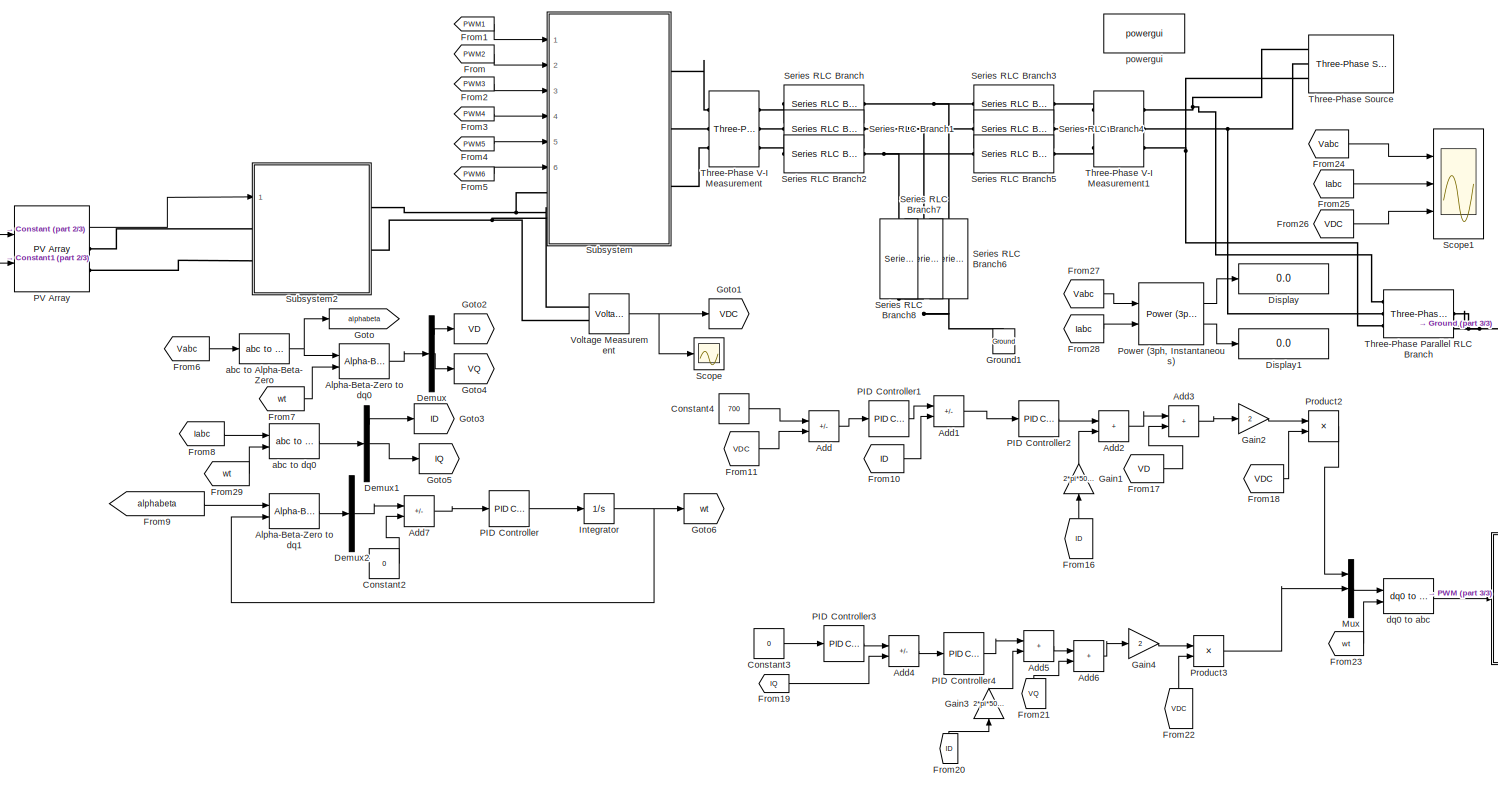
[diagram: root canvas - part 1/3, most of the canvas]
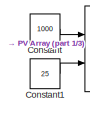
[diagram: root canvas - part 2/3, middle left region]
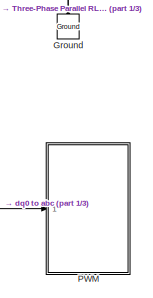
[diagram: root canvas - part 3/3, bottom right region]
MODEL slx_85e21baca87a
KIND model
CONFIG AbsTol = auto
CONFIG EnableMultiTasking = off
CONFIG FixedStep = 1e-7
CONFIG MaxStep = auto
CONFIG MinStep = auto
CONFIG RelTol = 1e-3
CONFIG SampleTimeConstraint = Unconstrained
CONFIG SolverName = ode8
CONFIG StartTime = 0.0
CONFIG StopTime = 0.05
BLOCK [Sum] Add
  IconShape = rectangular
  Inputs = +-
  Ports = [2, 1]
BLOCK [Sum] Add1
  IconShape = rectangular
  Inputs = +-
  Ports = [2, 1]
BLOCK [Sum] Add2
  IconShape = rectangular
  Ports = [2, 1]
BLOCK [Sum] Add3
  IconShape = rectangular
  Ports = [2, 1]
BLOCK [Sum] Add4
  IconShape = rectangular
  Inputs = +-
  Ports = [2, 1]
BLOCK [Sum] Add5
  IconShape = rectangular
  Ports = [2, 1]
BLOCK [Sum] Add6
  IconShape = rectangular
  Ports = [2, 1]
BLOCK [Sum] Add7
  IconShape = rectangular
  Inputs = -+
  Ports = [2, 1]
BLOCK [Reference] Alpha-Beta-Zero to dq0  REF=powerlib_meascontrol/Transformations/Alpha-Beta-Zero
to dq0
  Ports = [2, 1]
  SourceBlock = powerlib_meascontrol/Transformations/Alpha-Beta-Zero\nto dq0
  SourceProductBaseCode = PS
  SourceType = Alpha-Beta-Zero to dq0 Transformation
BLOCK [Reference] Alpha-Beta-Zero to dq1  REF=powerlib_meascontrol/Transformations/Alpha-Beta-Zero
to dq0
  Ports = [2, 1]
  SourceBlock = powerlib_meascontrol/Transformations/Alpha-Beta-Zero\nto dq0
  SourceProductBaseCode = PS
  SourceType = Alpha-Beta-Zero to dq0 Transformation
BLOCK [Constant] Constant
  Value = 1000
BLOCK [Constant] Constant1
  Value = 25
BLOCK [Constant] Constant2
  Value = 0
BLOCK [Constant] Constant3
  Value = 0
BLOCK [Constant] Constant4
  Value = 700
BLOCK [Demux] Demux
  Outputs = 3
  Ports = [1, 3]
BLOCK [Demux] Demux1
  Outputs = 3
  Ports = [1, 3]
BLOCK [Demux] Demux2
  Outputs = 3
  Ports = [1, 3]
BLOCK [Display] Display
  Decimation = 1
  Ports = [1]
BLOCK [Display] Display1
  Decimation = 1
  Ports = [1]
BLOCK [From] From
  GotoTag = PWM2
BLOCK [From] From1
  GotoTag = PWM1
BLOCK [From] From10
  GotoTag = ID
BLOCK [From] From11
  GotoTag = VDC
BLOCK [From] From16
  GotoTag = ID
  NameLocation = right
BLOCK [From] From17
  GotoTag = VD
BLOCK [From] From18
  GotoTag = VDC
BLOCK [From] From19
  GotoTag = IQ
BLOCK [From] From2
  GotoTag = PWM3
BLOCK [From] From20
  GotoTag = ID
  NameLocation = right
BLOCK [From] From21
  GotoTag = VQ
  NameLocation = right
BLOCK [From] From22
  GotoTag = VDC
  NameLocation = right
BLOCK [From] From23
  GotoTag = wt
BLOCK [From] From24
  GotoTag = Vabc
  TagVisibility = global
BLOCK [From] From25
  GotoTag = Iabc
  TagVisibility = global
BLOCK [From] From26
  GotoTag = VDC
BLOCK [From] From27
  GotoTag = Vabc
  TagVisibility = global
BLOCK [From] From28
  GotoTag = Iabc
  TagVisibility = global
BLOCK [From] From29
  GotoTag = wt
BLOCK [From] From3
  GotoTag = PWM4
BLOCK [From] From4
  GotoTag = PWM5
BLOCK [From] From5
  GotoTag = PWM6
BLOCK [From] From6
  GotoTag = Vabc
  TagVisibility = global
BLOCK [From] From7
  GotoTag = wt
BLOCK [From] From8
  GotoTag = Iabc
  TagVisibility = global
BLOCK [From] From9
  GotoTag = alphabeta
BLOCK [Gain] Gain1
  Gain = 2*pi*50*1000e-6
  NameLocation = right
BLOCK [Gain] Gain2
  Gain = 2
BLOCK [Gain] Gain3
  Gain = 2*pi*50*1000e-6
  NameLocation = right
BLOCK [Gain] Gain4
  Gain = 2
BLOCK [Goto] Goto
  GotoTag = alphabeta
BLOCK [Goto] Goto1
  GotoTag = VDC
BLOCK [Goto] Goto2
  GotoTag = VD
BLOCK [Goto] Goto3
  GotoTag = ID
BLOCK [Goto] Goto4
  GotoTag = VQ
BLOCK [Goto] Goto5
  GotoTag = IQ
BLOCK [Goto] Goto6
  GotoTag = wt
BLOCK [Reference] Ground  REF=powerlib/Elements/Ground
  NameLocation = right
  Ports = [0, 0, 0, 0, 0, 1]
  SourceBlock = powerlib/Elements/Ground
  SourceProductBaseCode = PS
  SourceType = Ground
BLOCK [Reference] Ground1  REF=powerlib/Elements/Ground
  NameLocation = right
  Ports = [0, 0, 0, 0, 0, 1]
  SourceBlock = powerlib/Elements/Ground
  SourceProductBaseCode = PS
  SourceType = Ground
BLOCK [Integrator] Integrator
  Ports = [1, 1]
BLOCK [Mux] Mux
  DisplayOption = bar
  Inputs = 3
  Ports = [3, 1]
BLOCK [Reference] PID Controller  REF=slpidlib/PID Controller
  Ports = [1, 1]
  SourceBlock = slpidlib/PID Controller
  SourceProductBaseCode = SL
  SourceType = PID 1dof
BLOCK [Reference] PID Controller1  REF=slpidlib/PID Controller
  Ports = [1, 1]
  SourceBlock = slpidlib/PID Controller
  SourceProductBaseCode = SL
  SourceType = PID 1dof
BLOCK [Reference] PID Controller2  REF=slpidlib/PID Controller
  Ports = [1, 1]
  SourceBlock = slpidlib/PID Controller
  SourceProductBaseCode = SL
  SourceType = PID 1dof
BLOCK [Reference] PID Controller3  REF=slpidlib/PID Controller
  Ports = [1, 1]
  SourceBlock = slpidlib/PID Controller
  SourceProductBaseCode = SL
  SourceType = PID 1dof
BLOCK [Reference] PID Controller4  REF=slpidlib/PID Controller
  Ports = [1, 1]
  SourceBlock = slpidlib/PID Controller
  SourceProductBaseCode = SL
  SourceType = PID 1dof
BLOCK [Reference] PV Array  REF=re_lib/Solar/PV Array
  Ports = [2, 1, 0, 0, 0, 0, 2]
  SourceBlock = re_lib/Solar/PV Array
  SourceProductBaseCode = PS
  SourceType = PV array
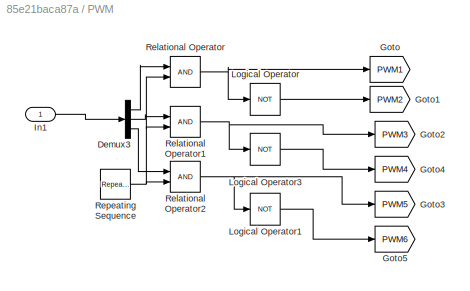
BLOCK [SubSystem] PWM
  Ports = [1]
  RequestExecContextInheritance = off
BLOCK [Demux] PWM/Demux3
  Outputs = 3
  Ports = [1, 3]
BLOCK [Goto] PWM/Goto
  GotoTag = PWM1
BLOCK [Goto] PWM/Goto1
  GotoTag = PWM2
BLOCK [Goto] PWM/Goto2
  GotoTag = PWM3
BLOCK [Goto] PWM/Goto3
  GotoTag = PWM5
BLOCK [Goto] PWM/Goto4
  GotoTag = PWM4
BLOCK [Goto] PWM/Goto5
  GotoTag = PWM6
BLOCK [Inport] PWM/In1
BLOCK [Logic] PWM/Logical Operator
  AllPortsSameDT = off
  Operator = NOT
  OutDataTypeStr = boolean
  Ports = [1, 1]
BLOCK [Logic] PWM/Logical Operator1
  AllPortsSameDT = off
  Operator = NOT
  OutDataTypeStr = boolean
  Ports = [1, 1]
BLOCK [Logic] PWM/Logical Operator3
  AllPortsSameDT = off
  Operator = NOT
  OutDataTypeStr = boolean
  Ports = [1, 1]
BLOCK [RelationalOperator] PWM/Relational Operator
  InputSameDT = off
  OutDataTypeStr = boolean
  Ports = [2, 1]
  RndMeth = Simplest
BLOCK [RelationalOperator] PWM/Relational Operator1
  InputSameDT = off
  OutDataTypeStr = boolean
  Ports = [2, 1]
  RndMeth = Simplest
BLOCK [RelationalOperator] PWM/Relational Operator2
  InputSameDT = off
  OutDataTypeStr = boolean
  Ports = [2, 1]
  RndMeth = Simplest
BLOCK [Reference] PWM/Repeating Sequence  REF=simulink/Sources/Repeating
Sequence
  Ports = [0, 1]
  SourceBlock = simulink/Sources/Repeating\nSequence
  SourceProductBaseCode = SL
  SourceType = Repeating table
BLOCK [Reference] Power (3ph, Instantaneous)  REF=powerlib_meascontrol/Measurements/Power
(3ph, Instantaneous)
  Ports = [2, 2]
  SourceBlock = powerlib_meascontrol/Measurements/Power\n(3ph, Instantaneous)
  SourceProductBaseCode = PS
  SourceType = Power (3ph, Instantaneous)
BLOCK [Product] Product2
  Inputs = */
  Ports = [2, 1]
BLOCK [Product] Product3
  Inputs = */
  Ports = [2, 1]
BLOCK [Scope] Scope
  Floating = off
  NumInputPorts = 1
  Ports = [1]
  ScopeSpecificationString = Simulink.scopes.TimeScopeBlockCfg('CurrentConfiguration', extmgr.ConfigurationSet(extmgr.Configuration('Core','General UI',true),extmgr.Configuration('Core','Source UI',true),extmgr.Configuration('Sources','WiredSimulink',true,'DataLoggingVariableName','ScopeData1'),extmgr.Configuration('Visuals','Time Domain',true,'SerializedDisplays',{struct('MinYLimReal','-60.79224','MaxYLimReal','547.13018','Y...<+1413ch>
BLOCK [Scope] Scope1
  Floating = off
  NumInputPorts = 3
  Ports = [3]
  ScopeSpecificationString = Simulink.scopes.TimeScopeBlockCfg('CurrentConfiguration', extmgr.ConfigurationSet(extmgr.Configuration('Core','General UI',true),extmgr.Configuration('Core','Source UI',true),extmgr.Configuration('Sources','WiredSimulink',true,'DataLoggingVariableName','ScopeData1'),extmgr.Configuration('Visuals','Time Domain',true,'SerializedDisplays',{struct('MinYLimReal','-707.08899','MaxYLimReal','707.08909','...<+2799ch>
BLOCK [Reference] Series RLC Branch  REF=powerlib/Elements/Series RLC Branch
  Ports = [0, 0, 0, 0, 0, 1, 1]
  SourceBlock = powerlib/Elements/Series RLC Branch
  SourceProductBaseCode = PS
  SourceType = Series RLC Branch
BLOCK [Reference] Series RLC Branch1  REF=powerlib/Elements/Series RLC Branch
  Ports = [0, 0, 0, 0, 0, 1, 1]
  SourceBlock = powerlib/Elements/Series RLC Branch
  SourceProductBaseCode = PS
  SourceType = Series RLC Branch
BLOCK [Reference] Series RLC Branch2  REF=powerlib/Elements/Series RLC Branch
  Ports = [0, 0, 0, 0, 0, 1, 1]
  SourceBlock = powerlib/Elements/Series RLC Branch
  SourceProductBaseCode = PS
  SourceType = Series RLC Branch
BLOCK [Reference] Series RLC Branch3  REF=powerlib/Elements/Series RLC Branch
  Ports = [0, 0, 0, 0, 0, 1, 1]
  SourceBlock = powerlib/Elements/Series RLC Branch
  SourceProductBaseCode = PS
  SourceType = Series RLC Branch
BLOCK [Reference] Series RLC Branch4  REF=powerlib/Elements/Series RLC Branch
  Ports = [0, 0, 0, 0, 0, 1, 1]
  SourceBlock = powerlib/Elements/Series RLC Branch
  SourceProductBaseCode = PS
  SourceType = Series RLC Branch
BLOCK [Reference] Series RLC Branch5  REF=powerlib/Elements/Series RLC Branch
  Ports = [0, 0, 0, 0, 0, 1, 1]
  SourceBlock = powerlib/Elements/Series RLC Branch
  SourceProductBaseCode = PS
  SourceType = Series RLC Branch
BLOCK [Reference] Series RLC Branch6  REF=powerlib/Elements/Series RLC Branch
  NameLocation = left
  Ports = [0, 0, 0, 0, 0, 1, 1]
  SourceBlock = powerlib/Elements/Series RLC Branch
  SourceProductBaseCode = PS
  SourceType = Series RLC Branch
BLOCK [Reference] Series RLC Branch7  REF=powerlib/Elements/Series RLC Branch
  NameLocation = left
  Ports = [0, 0, 0, 0, 0, 1, 1]
  SourceBlock = powerlib/Elements/Series RLC Branch
  SourceProductBaseCode = PS
  SourceType = Series RLC Branch
BLOCK [Reference] Series RLC Branch8  REF=powerlib/Elements/Series RLC Branch
  NameLocation = left
  Ports = [0, 0, 0, 0, 0, 1, 1]
  SourceBlock = powerlib/Elements/Series RLC Branch
  SourceProductBaseCode = PS
  SourceType = Series RLC Branch
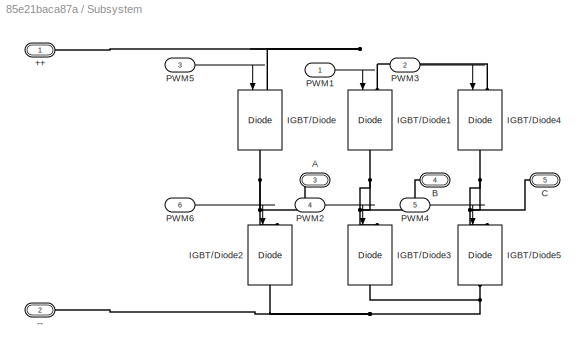
BLOCK [SubSystem] Subsystem
  Ports = [6, 0, 0, 0, 0, 2, 3]
  RequestExecContextInheritance = off
BLOCK [PMIOPort] Subsystem/++
  Side = Left
BLOCK [PMIOPort] Subsystem/--
  Port = 2
  Side = Left
BLOCK [PMIOPort] Subsystem/A
  NameLocation = right
  Port = 3
  Side = Right
BLOCK [PMIOPort] Subsystem/B
  NameLocation = top
  Port = 4
  Side = Right
BLOCK [PMIOPort] Subsystem/C
  NameLocation = top
  Port = 5
  Side = Right
BLOCK [Reference] Subsystem/IGBT//Diode  REF=powerlib/Power
Electronics/IGBT//Diode
  NameLocation = left
  Ports = [1, 0, 0, 0, 0, 1, 1]
  SourceBlock = powerlib/Power\nElectronics/IGBT//Diode
  SourceProductBaseCode = PS
  SourceType = IGBT/Diode
BLOCK [Reference] Subsystem/IGBT//Diode1  REF=powerlib/Power
Electronics/IGBT//Diode
  NameLocation = left
  Ports = [1, 0, 0, 0, 0, 1, 1]
  SourceBlock = powerlib/Power\nElectronics/IGBT//Diode
  SourceProductBaseCode = PS
  SourceType = IGBT/Diode
BLOCK [Reference] Subsystem/IGBT//Diode2  REF=powerlib/Power
Electronics/IGBT//Diode
  NameLocation = left
  Ports = [1, 0, 0, 0, 0, 1, 1]
  SourceBlock = powerlib/Power\nElectronics/IGBT//Diode
  SourceProductBaseCode = PS
  SourceType = IGBT/Diode
BLOCK [Reference] Subsystem/IGBT//Diode3  REF=powerlib/Power
Electronics/IGBT//Diode
  NameLocation = left
  Ports = [1, 0, 0, 0, 0, 1, 1]
  SourceBlock = powerlib/Power\nElectronics/IGBT//Diode
  SourceProductBaseCode = PS
  SourceType = IGBT/Diode
BLOCK [Reference] Subsystem/IGBT//Diode4  REF=powerlib/Power
Electronics/IGBT//Diode
  NameLocation = left
  Ports = [1, 0, 0, 0, 0, 1, 1]
  SourceBlock = powerlib/Power\nElectronics/IGBT//Diode
  SourceProductBaseCode = PS
  SourceType = IGBT/Diode
BLOCK [Reference] Subsystem/IGBT//Diode5  REF=powerlib/Power
Electronics/IGBT//Diode
  NameLocation = left
  Ports = [1, 0, 0, 0, 0, 1, 1]
  SourceBlock = powerlib/Power\nElectronics/IGBT//Diode
  SourceProductBaseCode = PS
  SourceType = IGBT/Diode
BLOCK [Inport] Subsystem/PWM1
BLOCK [Inport] Subsystem/PWM2
  Port = 4
BLOCK [Inport] Subsystem/PWM3
  Port = 2
BLOCK [Inport] Subsystem/PWM4
  Port = 5
BLOCK [Inport] Subsystem/PWM5
  Port = 3
BLOCK [Inport] Subsystem/PWM6
  Port = 6
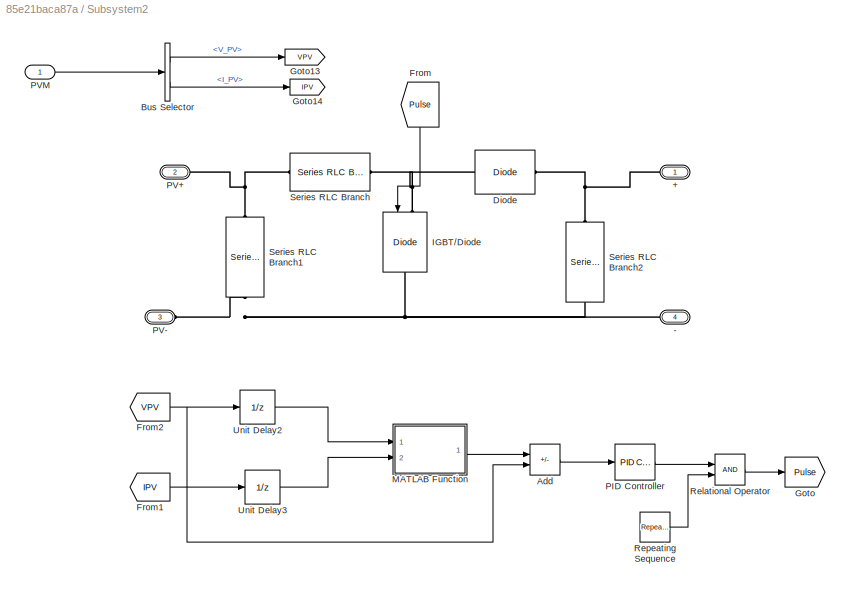
BLOCK [SubSystem] Subsystem2
  Ports = [1, 0, 0, 0, 0, 2, 2]
  RequestExecContextInheritance = off
BLOCK [PMIOPort] Subsystem2/+
  NameLocation = top
  Side = Right
BLOCK [PMIOPort] Subsystem2/-
  NameLocation = top
  Port = 4
  Side = Right
BLOCK [Sum] Subsystem2/Add
  IconShape = rectangular
  Inputs = -+
  Ports = [2, 1]
BLOCK [BusSelector] Subsystem2/Bus Selector
  OutputSignals = V_PV,I_PV
  Ports = [1, 2]
BLOCK [Reference] Subsystem2/Diode  REF=powerlib/Power
Electronics/Diode
  Ports = [0, 0, 0, 0, 0, 1, 1]
  SourceBlock = powerlib/Power\nElectronics/Diode
  SourceProductBaseCode = PS
  SourceType = Diode
BLOCK [From] Subsystem2/From
  GotoTag = Pulse
  NameLocation = left
BLOCK [From] Subsystem2/From1
  GotoTag = IPV
BLOCK [From] Subsystem2/From2
  GotoTag = VPV
BLOCK [Goto] Subsystem2/Goto
  GotoTag = Pulse
BLOCK [Goto] Subsystem2/Goto13
  GotoTag = VPV
BLOCK [Goto] Subsystem2/Goto14
  GotoTag = IPV
BLOCK [Reference] Subsystem2/IGBT//Diode  REF=powerlib/Power
Electronics/IGBT//Diode
  NameLocation = left
  Ports = [1, 0, 0, 0, 0, 1, 1]
  SourceBlock = powerlib/Power\nElectronics/IGBT//Diode
  SourceProductBaseCode = PS
  SourceType = IGBT/Diode
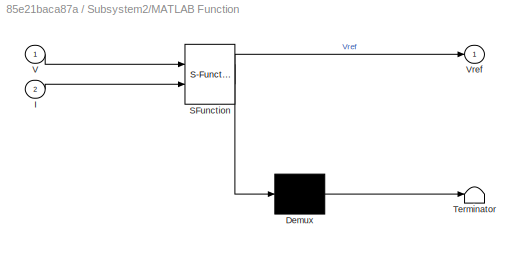
BLOCK [SubSystem] Subsystem2/MATLAB Function
  ErrorFcn = Stateflow.Translate.translate
  PermitHierarchicalResolution = ExplicitOnly
  Ports = [2, 1]
  RequestExecContextInheritance = off
  SFBlockType = MATLAB Function
  TreatAsAtomicUnit = on
BLOCK [Demux] Subsystem2/MATLAB Function/ Demux 
  Outputs = 1
  Ports = [1, 1]
BLOCK [S-Function] Subsystem2/MATLAB Function/ SFunction 
  EnableBusSupport = on
  FunctionName = sf_sfun
  PortCounts = [2 2]
  Ports = [2, 2]
  SFcnIsStateOwnerBlock = off
  SFunctionDeploymentMode = off
  Tag = Stateflow S-Function 2
BLOCK [Terminator] Subsystem2/MATLAB Function/ Terminator 
BLOCK [Inport] Subsystem2/MATLAB Function/I
  Port = 2
BLOCK [Inport] Subsystem2/MATLAB Function/V
BLOCK [Outport] Subsystem2/MATLAB Function/Vref
BLOCK [Reference] Subsystem2/PID Controller  REF=slpidlib/PID Controller
  Ports = [1, 1]
  SourceBlock = slpidlib/PID Controller
  SourceProductBaseCode = SL
  SourceType = PID 1dof
BLOCK [PMIOPort] Subsystem2/PV+
  Port = 2
  Side = Left
BLOCK [PMIOPort] Subsystem2/PV-
  Port = 3
  Side = Left
BLOCK [Inport] Subsystem2/PVM
BLOCK [RelationalOperator] Subsystem2/Relational Operator
  InputSameDT = off
  OutDataTypeStr = boolean
  Ports = [2, 1]
  RndMeth = Simplest
BLOCK [Reference] Subsystem2/Repeating Sequence  REF=simulink/Sources/Repeating
Sequence
  Ports = [0, 1]
  SourceBlock = simulink/Sources/Repeating\nSequence
  SourceProductBaseCode = SL
  SourceType = Repeating table
BLOCK [Reference] Subsystem2/Series RLC Branch  REF=powerlib/Elements/Series RLC Branch
  Ports = [0, 0, 0, 0, 0, 1, 1]
  SourceBlock = powerlib/Elements/Series RLC Branch
  SourceProductBaseCode = PS
  SourceType = Series RLC Branch
BLOCK [Reference] Subsystem2/Series RLC Branch1  REF=powerlib/Elements/Series RLC Branch
  NameLocation = left
  Ports = [0, 0, 0, 0, 0, 1, 1]
  SourceBlock = powerlib/Elements/Series RLC Branch
  SourceProductBaseCode = PS
  SourceType = Series RLC Branch
BLOCK [Reference] Subsystem2/Series RLC Branch2  REF=powerlib/Elements/Series RLC Branch
  NameLocation = left
  Ports = [0, 0, 0, 0, 0, 1, 1]
  SourceBlock = powerlib/Elements/Series RLC Branch
  SourceProductBaseCode = PS
  SourceType = Series RLC Branch
BLOCK [UnitDelay] Subsystem2/Unit Delay2
  HasFrameUpgradeWarning = on
  SampleTime = 1e-6
BLOCK [UnitDelay] Subsystem2/Unit Delay3
  HasFrameUpgradeWarning = on
  SampleTime = 1e-6
BLOCK [Reference] Three-Phase Parallel RLC Branch  REF=powerlib/Elements/Three-Phase
Parallel RLC Branch
  AttributesFormatString = \n
  Ports = [0, 0, 0, 0, 0, 3, 3]
  SourceBlock = powerlib/Elements/Three-Phase\nParallel RLC Branch
  SourceProductBaseCode = PS
  SourceType = Three-Phase Parallel RLC Branch
BLOCK [Reference] Three-Phase Source  REF=powerlib/Electrical
Sources/Three-Phase Source
  NameLocation = top
  Ports = [0, 0, 0, 0, 0, 0, 3]
  SourceBlock = powerlib/Electrical\nSources/Three-Phase Source
  SourceProductBaseCode = PS
  SourceType = Three-Phase Source
BLOCK [Reference] Three-Phase V-I Measurement  REF=powerlib/Measurements/Three-Phase
V-I Measurement
  Ports = [0, 0, 0, 0, 0, 3, 3]
  SourceBlock = powerlib/Measurements/Three-Phase\nV-I Measurement
  SourceProductBaseCode = PS
  SourceType = Three-Phase VI Measurement
BLOCK [Reference] Three-Phase V-I Measurement1  REF=powerlib/Measurements/Three-Phase
V-I Measurement
  Ports = [0, 0, 0, 0, 0, 3, 3]
  SourceBlock = powerlib/Measurements/Three-Phase\nV-I Measurement
  SourceProductBaseCode = PS
  SourceType = Three-Phase VI Measurement
BLOCK [Reference] Voltage Measurement  REF=powerlib/Measurements/Voltage Measurement
  Ports = [0, 1, 0, 0, 0, 2]
  SourceBlock = powerlib/Measurements/Voltage Measurement
  SourceProductBaseCode = PS
  SourceType = Voltage Measurement
  UserDataPersistent = on
BLOCK [Reference] abc to Alpha-Beta-Zero  REF=powerlib_meascontrol/Transformations/abc to
Alpha-Beta-Zero
  Ports = [1, 1]
  SourceBlock = powerlib_meascontrol/Transformations/abc to\nAlpha-Beta-Zero
  SourceProductBaseCode = PS
  SourceType = abc to Alpha-Beta-Zero Transformation
BLOCK [Reference] abc to dq0  REF=powerlib_meascontrol/Transformations/abc to dq0
  Ports = [2, 1]
  SourceBlock = powerlib_meascontrol/Transformations/abc to dq0
  SourceProductBaseCode = PS
  SourceType = abc to dq0 Transformation
BLOCK [Reference] dq0 to abc  REF=powerlib_meascontrol/Transformations/dq0 to abc
  Ports = [2, 1]
  SourceBlock = powerlib_meascontrol/Transformations/dq0 to abc
  SourceProductBaseCode = PS
  SourceType = dq0 to abc Transformation
BLOCK [Reference] powergui  REF=powerlib/powergui
  Ports = []
  Priority = 1
  SourceBlock = powerlib/powergui
  SourceProductBaseCode = PS
  SourceType = PSB option menu block
LINE Add1:1 -> PID Controller2:1
LINE Add2:1 -> Add3:1
LINE Add3:1 -> Gain2:1
LINE Add4:1 -> PID Controller4:1
LINE Add5:1 -> Add6:1
LINE Add6:1 -> Gain4:1
LINE Add7:1 -> PID Controller:1
LINE Add:1 -> PID Controller1:1
LINE Alpha-Beta-Zero to dq0:1 -> Demux:1
LINE Alpha-Beta-Zero to dq1:1 -> Demux2:1
LINE Constant1:1 -> PV Array:2
LINE Constant2:1 -> Add7:2
LINE Constant3:1 -> PID Controller3:1
LINE Constant4:1 -> Add:1
LINE Constant:1 -> PV Array:1
LINE Demux1:1 -> Goto3:1
LINE Demux1:2 -> Goto5:1
LINE Demux2:2 -> Add7:1
LINE Demux:1 -> Goto2:1
LINE Demux:2 -> Goto4:1
LINE From10:1 -> Add1:2
LINE From11:1 -> Add:2
LINE From16:1 -> Gain1:1
LINE From17:1 -> Add3:2
LINE From18:1 -> Product2:2
LINE From19:1 -> Add4:2
LINE From1:1 -> Subsystem:1
LINE From20:1 -> Gain3:1
LINE From21:1 -> Add6:2
LINE From22:1 -> Product3:2
LINE From23:1 -> dq0 to abc:2
LINE From24:1 -> Scope1:1
LINE From25:1 -> Scope1:2
LINE From26:1 -> Scope1:3
LINE From27:1 -> Power (3ph, Instantaneous):1
LINE From28:1 -> Power (3ph, Instantaneous):2
LINE From29:1 -> abc to dq0:2
LINE From2:1 -> Subsystem:3
LINE From3:1 -> Subsystem:4
LINE From4:1 -> Subsystem:5
LINE From5:1 -> Subsystem:6
LINE From6:1 -> abc to Alpha-Beta-Zero:1
LINE From7:1 -> Alpha-Beta-Zero to dq0:2
LINE From8:1 -> abc to dq0:1
LINE From9:1 -> Alpha-Beta-Zero to dq1:1
LINE From:1 -> Subsystem:2
LINE Gain1:1 -> Add2:2
LINE Gain2:1 -> Product2:1
LINE Gain3:1 -> Add5:2
LINE Gain4:1 -> Product3:1
NET Integrator:1 -> Alpha-Beta-Zero to dq1:2, Goto6:1
LINE Mux:1 -> dq0 to abc:1
LINE PID Controller1:1 -> Add1:1
LINE PID Controller2:1 -> Add2:1
LINE PID Controller3:1 -> Add4:1
LINE PID Controller4:1 -> Add5:1
LINE PID Controller:1 -> Integrator:1
LINE PV Array:1 -> Subsystem2:1
LINE PWM/Demux3:1 -> PWM/Relational Operator:1
LINE PWM/Demux3:2 -> PWM/Relational Operator1:1
LINE PWM/Demux3:3 -> PWM/Relational Operator2:1
LINE PWM/In1:1 -> PWM/Demux3:1
LINE PWM/Logical Operator1:1 -> PWM/Goto5:1
LINE PWM/Logical Operator3:1 -> PWM/Goto4:1
LINE PWM/Logical Operator:1 -> PWM/Goto1:1
NET PWM/Relational Operator1:1 -> PWM/Goto2:1, PWM/Logical Operator3:1
NET PWM/Relational Operator2:1 -> PWM/Goto3:1, PWM/Logical Operator1:1
NET PWM/Relational Operator:1 -> PWM/Goto:1, PWM/Logical Operator:1
NET PWM/Repeating Sequence:1 -> PWM/Relational Operator1:2, PWM/Relational Operator2:2, PWM/Relational Operator:2
LINE Power (3ph, Instantaneous):1 -> Display:1
LINE Power (3ph, Instantaneous):2 -> Display1:1
LINE Product2:1 -> Mux:1
LINE Product3:1 -> Mux:2
LINE Subsystem/PWM1:1 -> Subsystem/IGBT//Diode1:1
LINE Subsystem/PWM2:1 -> Subsystem/IGBT//Diode3:1
LINE Subsystem/PWM3:1 -> Subsystem/IGBT//Diode4:1
LINE Subsystem/PWM4:1 -> Subsystem/IGBT//Diode5:1
LINE Subsystem/PWM5:1 -> Subsystem/IGBT//Diode:1
LINE Subsystem/PWM6:1 -> Subsystem/IGBT//Diode2:1
LINE Subsystem2/Add:1 -> Subsystem2/PID Controller:1
LINE Subsystem2/Bus Selector:1 -> Subsystem2/Goto13:1
LINE Subsystem2/Bus Selector:2 -> Subsystem2/Goto14:1
LINE Subsystem2/From1:1 -> Subsystem2/Unit Delay3:1
NET Subsystem2/From2:1 -> Subsystem2/Add:2, Subsystem2/Unit Delay2:1
LINE Subsystem2/From:1 -> Subsystem2/IGBT//Diode:1
LINE Subsystem2/MATLAB Function:1 -> Subsystem2/Add:1
LINE Subsystem2/PID Controller:1 -> Subsystem2/Relational Operator:1
LINE Subsystem2/PVM:1 -> Subsystem2/Bus Selector:1
LINE Subsystem2/Relational Operator:1 -> Subsystem2/Goto:1
LINE Subsystem2/Repeating Sequence:1 -> Subsystem2/Relational Operator:2
LINE Subsystem2/Unit Delay2:1 -> Subsystem2/MATLAB Function:1
LINE Subsystem2/Unit Delay3:1 -> Subsystem2/MATLAB Function:2
NET Voltage Measurement:1 -> Goto1:1, Scope:1
NET abc to Alpha-Beta-Zero:1 -> Alpha-Beta-Zero to dq0:1, Goto:1
LINE abc to dq0:1 -> Demux1:1
LINE dq0 to abc:1 -> PWM:1
PNET net1: Ground1:LConn1 -- Series RLC Branch6:RConn1 -- Series RLC Branch7:RConn1 -- Series RLC Branch8:RConn1
PNET net2: Ground:LConn1 -- Three-Phase Parallel RLC Branch:RConn1 -- Three-Phase Parallel RLC Branch:RConn2 -- Three-Phase Parallel RLC Branch:RConn3
PLINE PV Array:RConn1 -- Subsystem2:LConn1
PLINE PV Array:RConn2 -- Subsystem2:LConn2
PLINE Series RLC Branch1:LConn1 -- Three-Phase V-I Measurement:RConn2
PNET net3: Series RLC Branch1:RConn1 -- Series RLC Branch4:LConn1 -- Series RLC Branch7:LConn1
PLINE Series RLC Branch2:LConn1 -- Three-Phase V-I Measurement:RConn3
PNET net4: Series RLC Branch2:RConn1 -- Series RLC Branch5:LConn1 -- Series RLC Branch8:LConn1
PNET net5: Series RLC Branch3:LConn1 -- Series RLC Branch6:LConn1 -- Series RLC Branch:RConn1
PLINE Series RLC Branch3:RConn1 -- Three-Phase V-I Measurement1:RConn1
PLINE Series RLC Branch4:RConn1 -- Three-Phase V-I Measurement1:RConn2
PLINE Series RLC Branch5:RConn1 -- Three-Phase V-I Measurement1:RConn3
PLINE Series RLC Branch:LConn1 -- Three-Phase V-I Measurement:RConn1
PNET net6: Subsystem/++:RConn1 -- Subsystem/IGBT//Diode1:LConn1 -- Subsystem/IGBT//Diode4:LConn1 -- Subsystem/IGBT//Diode:LConn1
PNET net7: Subsystem/--:RConn1 -- Subsystem/IGBT//Diode2:RConn1 -- Subsystem/IGBT//Diode3:RConn1 -- Subsystem/IGBT//Diode5:RConn1
PNET net8: Subsystem/A:RConn1 -- Subsystem/IGBT//Diode2:LConn1 -- Subsystem/IGBT//Diode:RConn1
PNET net9: Subsystem/B:RConn1 -- Subsystem/IGBT//Diode1:RConn1 -- Subsystem/IGBT//Diode3:LConn1
PNET net10: Subsystem/C:RConn1 -- Subsystem/IGBT//Diode4:RConn1 -- Subsystem/IGBT//Diode5:LConn1
PNET net11: Subsystem2/+:RConn1 -- Subsystem2/Diode:RConn1 -- Subsystem2/Series RLC Branch2:LConn1
PNET net12: Subsystem2/-:RConn1 -- Subsystem2/IGBT//Diode:RConn1 -- Subsystem2/PV-:RConn1 -- Subsystem2/Series RLC Branch1:RConn1 -- Subsystem2/Series RLC Branch2:RConn1
PNET net13: Subsystem2/Diode:LConn1 -- Subsystem2/IGBT//Diode:LConn1 -- Subsystem2/Series RLC Branch:RConn1
PNET net14: Subsystem2/PV+:RConn1 -- Subsystem2/Series RLC Branch1:LConn1 -- Subsystem2/Series RLC Branch:LConn1
PNET net15: Subsystem2:RConn1 -- Subsystem:LConn1 -- Voltage Measurement:LConn1
PNET net16: Subsystem2:RConn2 -- Subsystem:LConn2 -- Voltage Measurement:LConn2
PLINE Subsystem:RConn1 -- Three-Phase V-I Measurement:LConn1
PLINE Subsystem:RConn2 -- Three-Phase V-I Measurement:LConn2
PLINE Subsystem:RConn3 -- Three-Phase V-I Measurement:LConn3
PNET net17: Three-Phase Parallel RLC Branch:LConn1 -- Three-Phase Source:RConn1 -- Three-Phase V-I Measurement1:LConn1
PNET net18: Three-Phase Parallel RLC Branch:LConn2 -- Three-Phase Source:RConn2 -- Three-Phase V-I Measurement1:LConn2
PNET net19: Three-Phase Parallel RLC Branch:LConn3 -- Three-Phase Source:RConn3 -- Three-Phase V-I Measurement1:LConn3
note: NET lines group one-source signal fan-out (src -> all destinations, sorted); 1:1 wires keep LINE; PNET lines group multi-terminal physical nets as a canonical sorted terminal list (undirected conserving connections); 2-terminal nets keep the pairwise PLINE form
CHART Subsystem2/MATLAB Function states=1 transitions=1
  STATE_LABEL 'eML_blk_kernel()'
  STATE_LABEL "SCRIPT:\nfunction Vref = RefGen(V, I)\n\nVrefmax = 363;\nVrefmin = 0;\nVrefinit = 300;\ndeltaVref = 5;\n\npersistent Vold Pold Vrefold;\n\ndataType = 'double';\n\nif isempty(Vold)\n\n    Vold= 0;\n    Pold = 0;\n    Vrefold = Vrefinit;\nend\n\nP = V*I;\ndV = V - Vold;\ndP = P - Pold;\n\nif dP ~= 0\n    if dP < 0\n        if dV < 0\n            Vref = Vrefold + deltaVref;\n        else\n            Vref = Vrefold - deltaVref;...<+282ch>"
CHART  states=0 transitions=0
